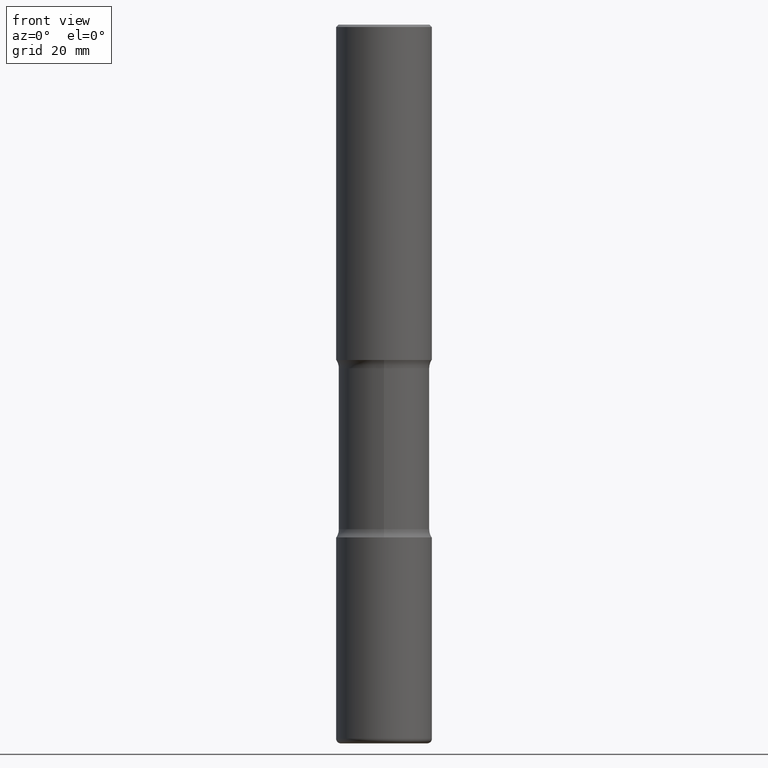
[diagram: clean part render]
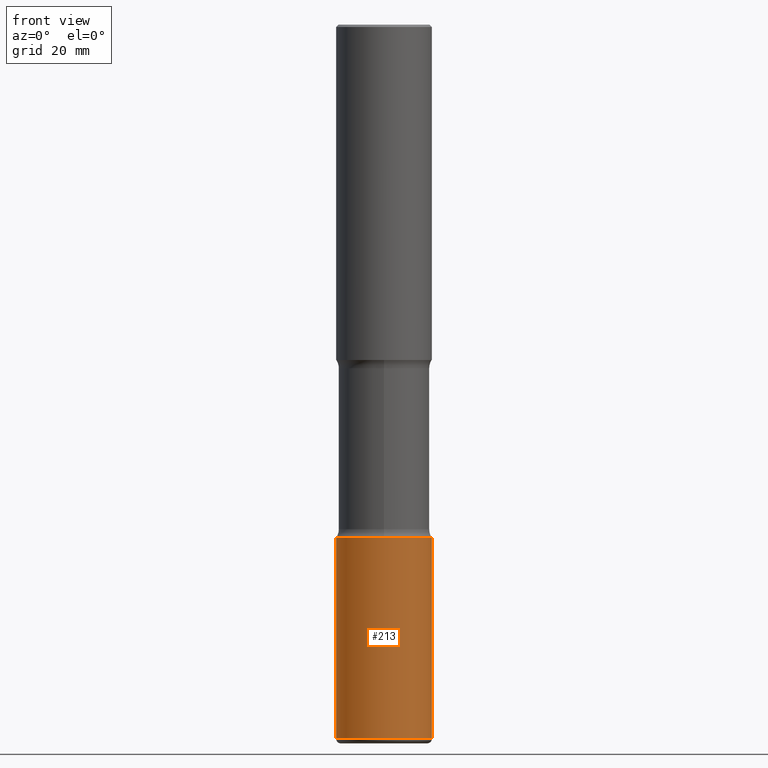
[diagram: same view with one face highlighted and labeled with its STEP entity id]
A machine part, front view. The second image highlights one B-rep face of the part: STEP entity #213.
In plain terms, the highlighted cylindrical surface (partial cylindrical patch) has radius 10 mm, axis along (-0, 0, 1).
Its self-contained STEP definition (entity closure, byte-faithful):
#30 = VERTEX_POINT ( 'NONE', #261 ) ;
#34 = ORIENTED_EDGE ( 'NONE', *, *, #508, .F. ) ;
#48 = CARTESIAN_POINT ( 'NONE',  ( 1.434536456396262699E-28, -2.048137868178777275E-14, -5.866099999999998538 ) ) ;
#49 = CIRCLE ( 'NONE', #454, 0.3937000000000002164 ) ;
#85 = DIRECTION ( 'NONE',  ( -2.445468806185136597E-29, 3.491481338843145583E-15, 1.000000000000000000 ) ) ;
#87 = VECTOR ( 'NONE', #251, 39.37007874015748143 ) ;
#108 = ORIENTED_EDGE ( 'NONE', *, *, #160, .F. ) ;
#113 = CYLINDRICAL_SURFACE ( 'NONE', #166, 0.3937000000000002164 ) ;
#129 = AXIS2_PLACEMENT_3D ( 'NONE', #150, #427, #281 ) ;
#131 = EDGE_CURVE ( 'NONE', #30, #541, #49, .T. ) ;
#149 = CARTESIAN_POINT ( 'NONE',  ( 0.3937000000000002720, -1.745740669421571411E-14, -4.212599999999998346 ) ) ;
#150 = CARTESIAN_POINT ( 'NONE',  ( 1.030178189293550378E-28, -1.470821428801063089E-14, -4.212599999999998346 ) ) ;
#160 = EDGE_CURVE ( 'NONE', #30, #325, #229, .T. ) ;
#162 = LINE ( 'NONE', #389, #87 ) ;
#166 = AXIS2_PLACEMENT_3D ( 'NONE', #372, #376, #534 ) ;
#171 = CARTESIAN_POINT ( 'NONE',  ( 0.3937000000000004385, -2.323057108799285912E-14, -5.866099999999998538 ) ) ;
#200 = VERTEX_POINT ( 'NONE', #149 ) ;
#213 = ADVANCED_FACE ( 'NONE', ( #464 ), #113, .T. ) ;
#229 = LINE ( 'NONE', #324, #504 ) ;
#251 = DIRECTION ( 'NONE',  ( -2.445468806185136877E-29, 3.491481338843145188E-15, 1.000000000000000000 ) ) ;
#261 = CARTESIAN_POINT ( 'NONE',  ( -0.3937000000000004385, -1.768397193110025560E-14, -5.866099999999998538 ) ) ;
#279 = ORIENTED_EDGE ( 'NONE', *, *, #131, .T. ) ;
#281 = DIRECTION ( 'NONE',  ( 1.000000000000000000, -6.982962677686269077E-15, 0.000000000000000000 ) ) ;
#324 = CARTESIAN_POINT ( 'NONE',  ( -0.3937000000000002164, 2.797406750687515970E-15, -1.936584745033357576E-29 ) ) ;
#325 = VERTEX_POINT ( 'NONE', #456 ) ;
#365 = EDGE_CURVE ( 'NONE', #541, #200, #162, .T. ) ;
#372 = CARTESIAN_POINT ( 'NONE',  ( 0.000000000000000000, 0.000000000000000000, 0.000000000000000000 ) ) ;
#373 = DIRECTION ( 'NONE',  ( -2.445468806185136877E-29, 3.491481338843145188E-15, 1.000000000000000000 ) ) ;
#376 = DIRECTION ( 'NONE',  ( -2.445468806185136597E-29, 3.491481338843145583E-15, 1.000000000000000000 ) ) ;
#389 = CARTESIAN_POINT ( 'NONE',  ( 0.3937000000000002164, -2.749192406205084794E-15, 1.919750796630861012E-29 ) ) ;
#427 = DIRECTION ( 'NONE',  ( -2.445468806185136597E-29, 3.491481338843145583E-15, 1.000000000000000000 ) ) ;
#431 = CIRCLE ( 'NONE', #129, 0.3937000000000002720 ) ;
#454 = AXIS2_PLACEMENT_3D ( 'NONE', #48, #85, #488 ) ;
#456 = CARTESIAN_POINT ( 'NONE',  ( -0.3937000000000002720, -1.479738973421168625E-14, -4.212599999999998346 ) ) ;
#464 = FACE_OUTER_BOUND ( 'NONE', #517, .T. ) ;
#488 = DIRECTION ( 'NONE',  ( 1.000000000000000000, -6.982962677686265133E-15, 0.000000000000000000 ) ) ;
#503 = ORIENTED_EDGE ( 'NONE', *, *, #365, .T. ) ;
#504 = VECTOR ( 'NONE', #373, 39.37007874015748143 ) ;
#508 = EDGE_CURVE ( 'NONE', #325, #200, #431, .T. ) ;
#517 = EDGE_LOOP ( 'NONE', ( #108, #279, #503, #34 ) ) ;
#534 = DIRECTION ( 'NONE',  ( 1.000000000000000000, -6.982962677686266711E-15, 4.876176775795935793E-29 ) ) ;
#541 = VERTEX_POINT ( 'NONE', #171 ) ;